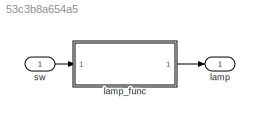
MODEL slx_53c3b8a654a5
KIND model
CONFIG AbsTol = auto
CONFIG EnableMultiTasking = off
CONFIG FixedStep = 0.01
CONFIG MaxStep = auto
CONFIG MinStep = auto
CONFIG RelTol = 1e-3
CONFIG SampleTimeConstraint = Unconstrained
CONFIG Solver = FixedStepDiscrete
CONFIG SolverName = FixedStepDiscrete
CONFIG StartTime = 0.0
CONFIG StopTime = 10.0
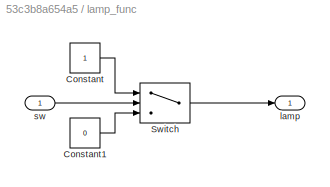
BLOCK [SubSystem]   lamp_func 
  Ports = [1, 1]
  RTWFcnNameOpts = Use subsystem name
  RTWFileNameOpts = Use subsystem name
  RTWSystemCode = Reusable function
  RequestExecContextInheritance = off
  TreatAsAtomicUnit = on
BLOCK [Constant]   lamp_func /Constant
  OutDataTypeStr = boolean
BLOCK [Constant]   lamp_func /Constant1
  OutDataTypeStr = boolean
  Value = 0
BLOCK [Switch]   lamp_func /Switch
  Criteria = u2 ~= 0
  InputSameDT = off
  SaturateOnIntegerOverflow = off
BLOCK [Outport]   lamp_func /lamp
  IconDisplay = Port number
  OutDataTypeStr = boolean
BLOCK [Inport]   lamp_func /sw
  IconDisplay = Port number
  OutDataTypeStr = boolean
BLOCK [Outport] lamp
  IconDisplay = Port number
  OutDataTypeStr = boolean
BLOCK [Inport] sw
  IconDisplay = Port number
  OutDataTypeStr = boolean
LINE   lamp_func /Constant1:1 ->   lamp_func /Switch:3
LINE   lamp_func /Constant:1 ->   lamp_func /Switch:1
LINE   lamp_func /Switch:1 ->   lamp_func /lamp:1
LINE   lamp_func /sw:1 ->   lamp_func /Switch:2
LINE   lamp_func :1 -> lamp:1
LINE sw:1 ->   lamp_func :1
